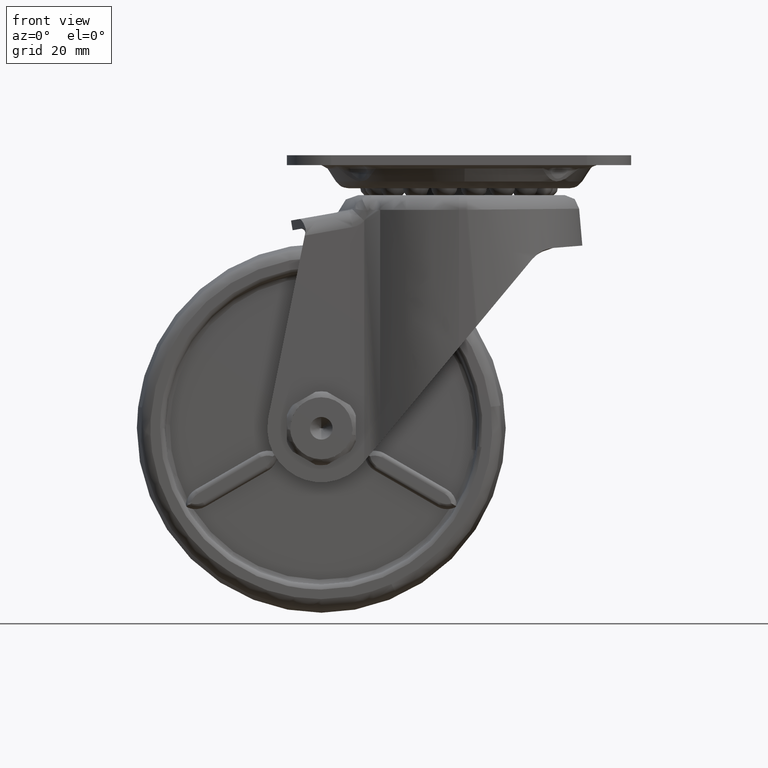
[diagram: clean part render]
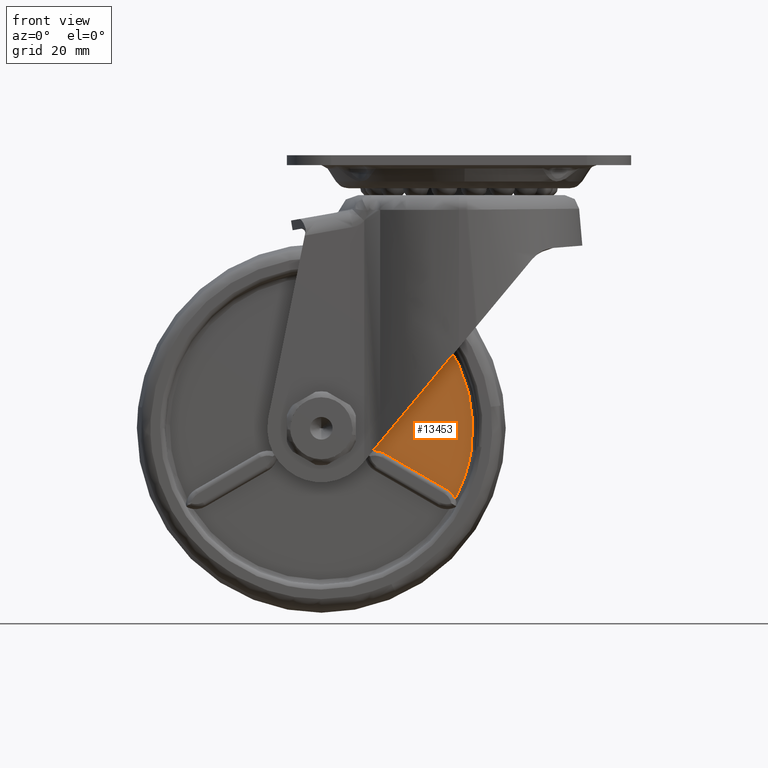
[diagram: same view with one face highlighted and labeled with its STEP entity id]
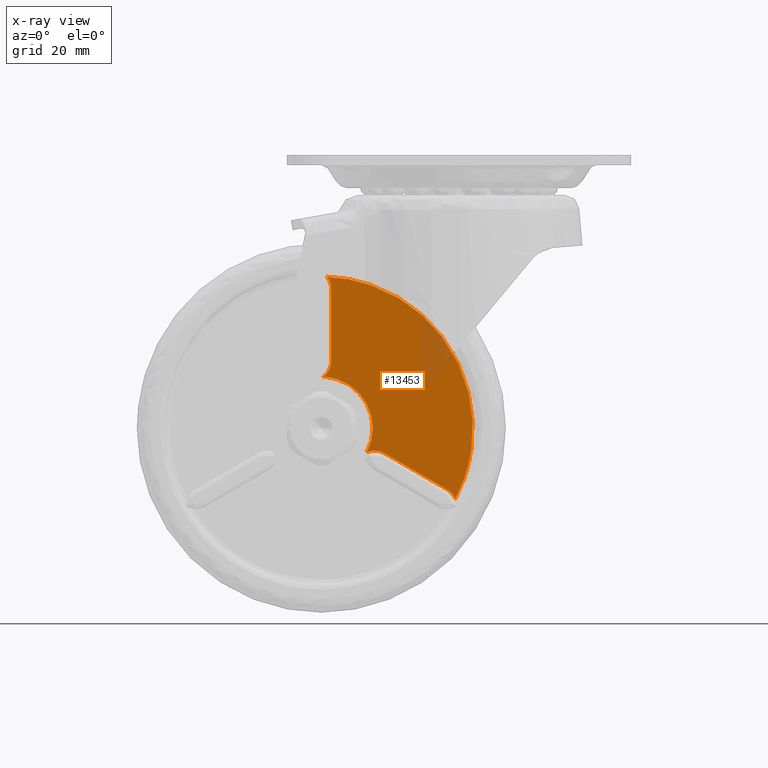
[diagram: x-ray of the same camera — body ghosted, the highlighted face saturated]
A machine part, front view. The second image highlights one B-rep face of the part: STEP entity #13453.
The next image is the same camera in x-ray: the body ghosted, the highlighted face saturated — about 6% of this face is hidden behind the body in this view.
In plain terms, the highlighted face is a freeform B-spline surface patch.
Its self-contained STEP definition (entity closure, byte-faithful):
#7693=CARTESIAN_POINT('',(-18.764854993854751,-7.500000000000000,-60.397308609250693));
#7694=VERTEX_POINT('',#7693);
#7702=CARTESIAN_POINT('',(-27.623615966558500,-7.500000000000119,-45.053484512419502));
#7703=VERTEX_POINT('',#7702);
#7704=CARTESIAN_POINT('',(-18.764854993854659,-7.500000000000119,-60.397308609250743));
#7705=CARTESIAN_POINT('',(-16.053779682941233,-7.500000000000117,-55.284867002809840));
#7706=CARTESIAN_POINT('',(-18.947176843750331,-7.500000000000119,-50.273356113812959));
#7707=CARTESIAN_POINT('',(-21.840574004559439,-7.500000000000117,-45.261845224816078));
#7708=CARTESIAN_POINT('',(-27.623615966558489,-7.500000000000119,-45.053484512419473));
#7716=(BOUNDED_CURVE()B_SPLINE_CURVE(2,(#7704,#7705,#7706,#7707,#7708),.UNSPECIFIED.,.F.,.U.)B_SPLINE_CURVE_WITH_KNOTS((3,2,3),(0.0,0.500000000000000,1.0),.UNSPECIFIED.)CURVE()GEOMETRIC_REPRESENTATION_ITEM()RATIONAL_B_SPLINE_CURVE((1.0,0.874888022019496,1.0,0.874888022019496,1.0))REPRESENTATION_ITEM(''));
#7717=EDGE_CURVE('',#7694,#7703,#7716,.T.);
#9189=CARTESIAN_POINT('',(-26.831875302561901,-7.500000000000090,-24.722166194528800));
#9190=VERTEX_POINT('',#9189);
#9220=CARTESIAN_POINT('',(2.494965473820387,-7.500000000000121,-59.824011109748447));
#9221=VERTEX_POINT('',#9220);
#9222=CARTESIAN_POINT('',(2.494965473820388,-7.500000000000121,-59.824011109748447));
#9223=CARTESIAN_POINT('',(3.986811954784026,-7.500000000000121,-49.302791477837310));
#9224=CARTESIAN_POINT('',(-1.326418429464686,-7.500000000000119,-40.100006499999822));
#9225=CARTESIAN_POINT('',(-9.832317124608538,-7.500000000000120,-25.367357795976840));
#9226=CARTESIAN_POINT('',(-26.831875302561890,-7.500000000000119,-24.722166194528789));
#9234=(BOUNDED_CURVE()B_SPLINE_CURVE(2,(#9222,#9223,#9224,#9225,#9226),.UNSPECIFIED.,.F.,.U.)B_SPLINE_CURVE_WITH_KNOTS((3,2,3),(0.172344069271589,0.500000000000000,1.0),.UNSPECIFIED.)CURVE()GEOMETRIC_REPRESENTATION_ITEM()RATIONAL_B_SPLINE_CURVE((0.943689850862094,0.918317251391503,1.0,0.875352861114236,1.0))REPRESENTATION_ITEM(''));
#9235=EDGE_CURVE('',#9221,#9190,#9234,.T.);
#9280=CARTESIAN_POINT('',(-0.761546506135213,-7.500000000000100,-69.877300239965905));
#9281=VERTEX_POINT('',#9280);
#9282=CARTESIAN_POINT('',(-0.761546506135160,-7.500000000000119,-69.877300239965933));
#9283=CARTESIAN_POINT('',(1.742013798549766,-7.500000000000119,-65.134188650952012));
#9284=CARTESIAN_POINT('',(2.494965473820388,-7.500000000000121,-59.824011109748447));
#9292=(BOUNDED_CURVE()B_SPLINE_CURVE(2,(#9282,#9283,#9284),.UNSPECIFIED.,.F.,.U.)B_SPLINE_CURVE_WITH_KNOTS((3,3),(0.0,0.172344069271589),.UNSPECIFIED.)CURVE()GEOMETRIC_REPRESENTATION_ITEM()RATIONAL_B_SPLINE_CURVE((1.0,0.957035609722733,0.943689850862094))REPRESENTATION_ITEM(''));
#9293=EDGE_CURVE('',#9281,#9221,#9292,.T.);
#12058=CARTESIAN_POINT('',(-25.999978024879852,-7.500000000000000,-41.835883722837004));
#12059=VERTEX_POINT('',#12058);
#12067=CARTESIAN_POINT('',(-27.623615966558511,-7.500000000000000,-45.053484512419487));
#12068=CARTESIAN_POINT('',(-25.999977618701333,-7.500000000000000,-43.854337405439367));
#12069=CARTESIAN_POINT('',(-25.999978024879841,-7.500000000000000,-41.835883722837004));
#12077=(BOUNDED_CURVE()B_SPLINE_CURVE(2,(#12067,#12068,#12069),.UNSPECIFIED.,.F.,.U.)CURVE()GEOMETRIC_REPRESENTATION_ITEM()QUASI_UNIFORM_CURVE()RATIONAL_B_SPLINE_CURVE((1.0,0.892774271407520,1.0))REPRESENTATION_ITEM(''));
#12078=EDGE_CURVE('',#7703,#12059,#12077,.T.);
#12182=CARTESIAN_POINT('',(-25.999980977322402,-7.500000000000000,-27.164087339855850));
#12183=VERTEX_POINT('',#12182);
#12189=CARTESIAN_POINT('',(-25.999980977322409,-7.500000000000000,-27.164087339855850));
#12190=CARTESIAN_POINT('',(-25.999981216363949,-7.500000000000000,-25.801425268768558));
#12191=CARTESIAN_POINT('',(-26.831875302561919,-7.500000000000000,-24.722166194528821));
#12199=(BOUNDED_CURVE()B_SPLINE_CURVE(2,(#12189,#12190,#12191),.UNSPECIFIED.,.F.,.U.)CURVE()GEOMETRIC_REPRESENTATION_ITEM()QUASI_UNIFORM_CURVE()RATIONAL_B_SPLINE_CURVE((1.0,0.946578746526961,1.0))REPRESENTATION_ITEM(''));
#12200=EDGE_CURVE('',#12183,#9190,#12199,.T.);
#12214=CARTESIAN_POINT('',(-25.999978024879852,-7.500000000000000,-41.835883722837004));
#12215=CARTESIAN_POINT('',(-25.999980977322402,-7.500000000000000,-27.164087339855850));
#12216=QUASI_UNIFORM_CURVE('',1,(#12214,#12215),.UNSPECIFIED.,.F.,.U.);
#12217=EDGE_CURVE('',#12059,#12183,#12216,.T.);
#12474=CARTESIAN_POINT('',(-2.460365051619250,-7.500000000000000,-67.935898070197595));
#12475=VERTEX_POINT('',#12474);
#12488=CARTESIAN_POINT('',(-0.761546506135196,-7.500000000000000,-69.877300239965905));
#12489=CARTESIAN_POINT('',(-1.280265229323931,-7.500000000000000,-68.617229313456150));
#12490=CARTESIAN_POINT('',(-2.460365051619246,-7.500000000000000,-67.935898070197595));
#12498=(BOUNDED_CURVE()B_SPLINE_CURVE(2,(#12488,#12489,#12490),.UNSPECIFIED.,.F.,.U.)CURVE()GEOMETRIC_REPRESENTATION_ITEM()QUASI_UNIFORM_CURVE()RATIONAL_B_SPLINE_CURVE((1.0,0.946578748285821,1.0))REPRESENTATION_ITEM(''));
#12499=EDGE_CURVE('',#9281,#12475,#12498,.T.);
#12599=CARTESIAN_POINT('',(-15.166512000000100,-7.500000000000000,-60.599997299999899));
#12600=VERTEX_POINT('',#12599);
#12606=CARTESIAN_POINT('',(-15.166512000000120,-7.500000000000000,-60.599997299999913));
#12607=CARTESIAN_POINT('',(-16.914543962406761,-7.500000000000000,-59.590770106937818));
#12608=CARTESIAN_POINT('',(-18.764854993854762,-7.500000000000000,-60.397308609250679));
#12616=(BOUNDED_CURVE()B_SPLINE_CURVE(2,(#12606,#12607,#12608),.UNSPECIFIED.,.F.,.U.)CURVE()GEOMETRIC_REPRESENTATION_ITEM()QUASI_UNIFORM_CURVE()RATIONAL_B_SPLINE_CURVE((1.0,0.892774271407520,1.0))REPRESENTATION_ITEM(''));
#12617=EDGE_CURVE('',#12600,#7694,#12616,.T.);
#12646=CARTESIAN_POINT('',(-2.460365051619250,-7.500000000000000,-67.935898070197595));
#12647=CARTESIAN_POINT('',(-15.166512000000100,-7.500000000000000,-60.599997299999899));
#12648=QUASI_UNIFORM_CURVE('',1,(#12646,#12647),.UNSPECIFIED.,.F.,.U.);
#12649=EDGE_CURVE('',#12475,#12600,#12648,.T.);
#13437=CARTESIAN_POINT('',(-29.142734068344570,-7.500000000000119,-22.466667235246248));
#13438=CARTESIAN_POINT('',(-29.142734068344570,-7.500000000000119,-72.132793547191440));
#13439=CARTESIAN_POINT('',(4.308290916585691,-7.500000000000119,-22.466667235246248));
#13440=CARTESIAN_POINT('',(4.308290916585691,-7.500000000000119,-72.132793547191440));
#13441=B_SPLINE_SURFACE_WITH_KNOTS('',1,1,((#13437,#13439),(#13438,#13440)),.UNSPECIFIED.,.F.,.F.,.U.,(2,2),(2,2),(0.0,49.666126311945192),(0.0,33.451024984930257),.UNSPECIFIED.);
#13442=ORIENTED_EDGE('',*,*,#12078,.F.);
#13443=ORIENTED_EDGE('',*,*,#7717,.F.);
#13444=ORIENTED_EDGE('',*,*,#12617,.F.);
#13445=ORIENTED_EDGE('',*,*,#12649,.F.);
#13446=ORIENTED_EDGE('',*,*,#12499,.F.);
#13447=ORIENTED_EDGE('',*,*,#9293,.T.);
#13448=ORIENTED_EDGE('',*,*,#9235,.T.);
#13449=ORIENTED_EDGE('',*,*,#12200,.F.);
#13450=ORIENTED_EDGE('',*,*,#12217,.F.);
#13451=EDGE_LOOP('',(#13442,#13443,#13444,#13445,#13446,#13447,#13448,#13449,#13450));
#13452=FACE_OUTER_BOUND('',#13451,.T.);
#13453=ADVANCED_FACE('',(#13452),#13441,.T.);